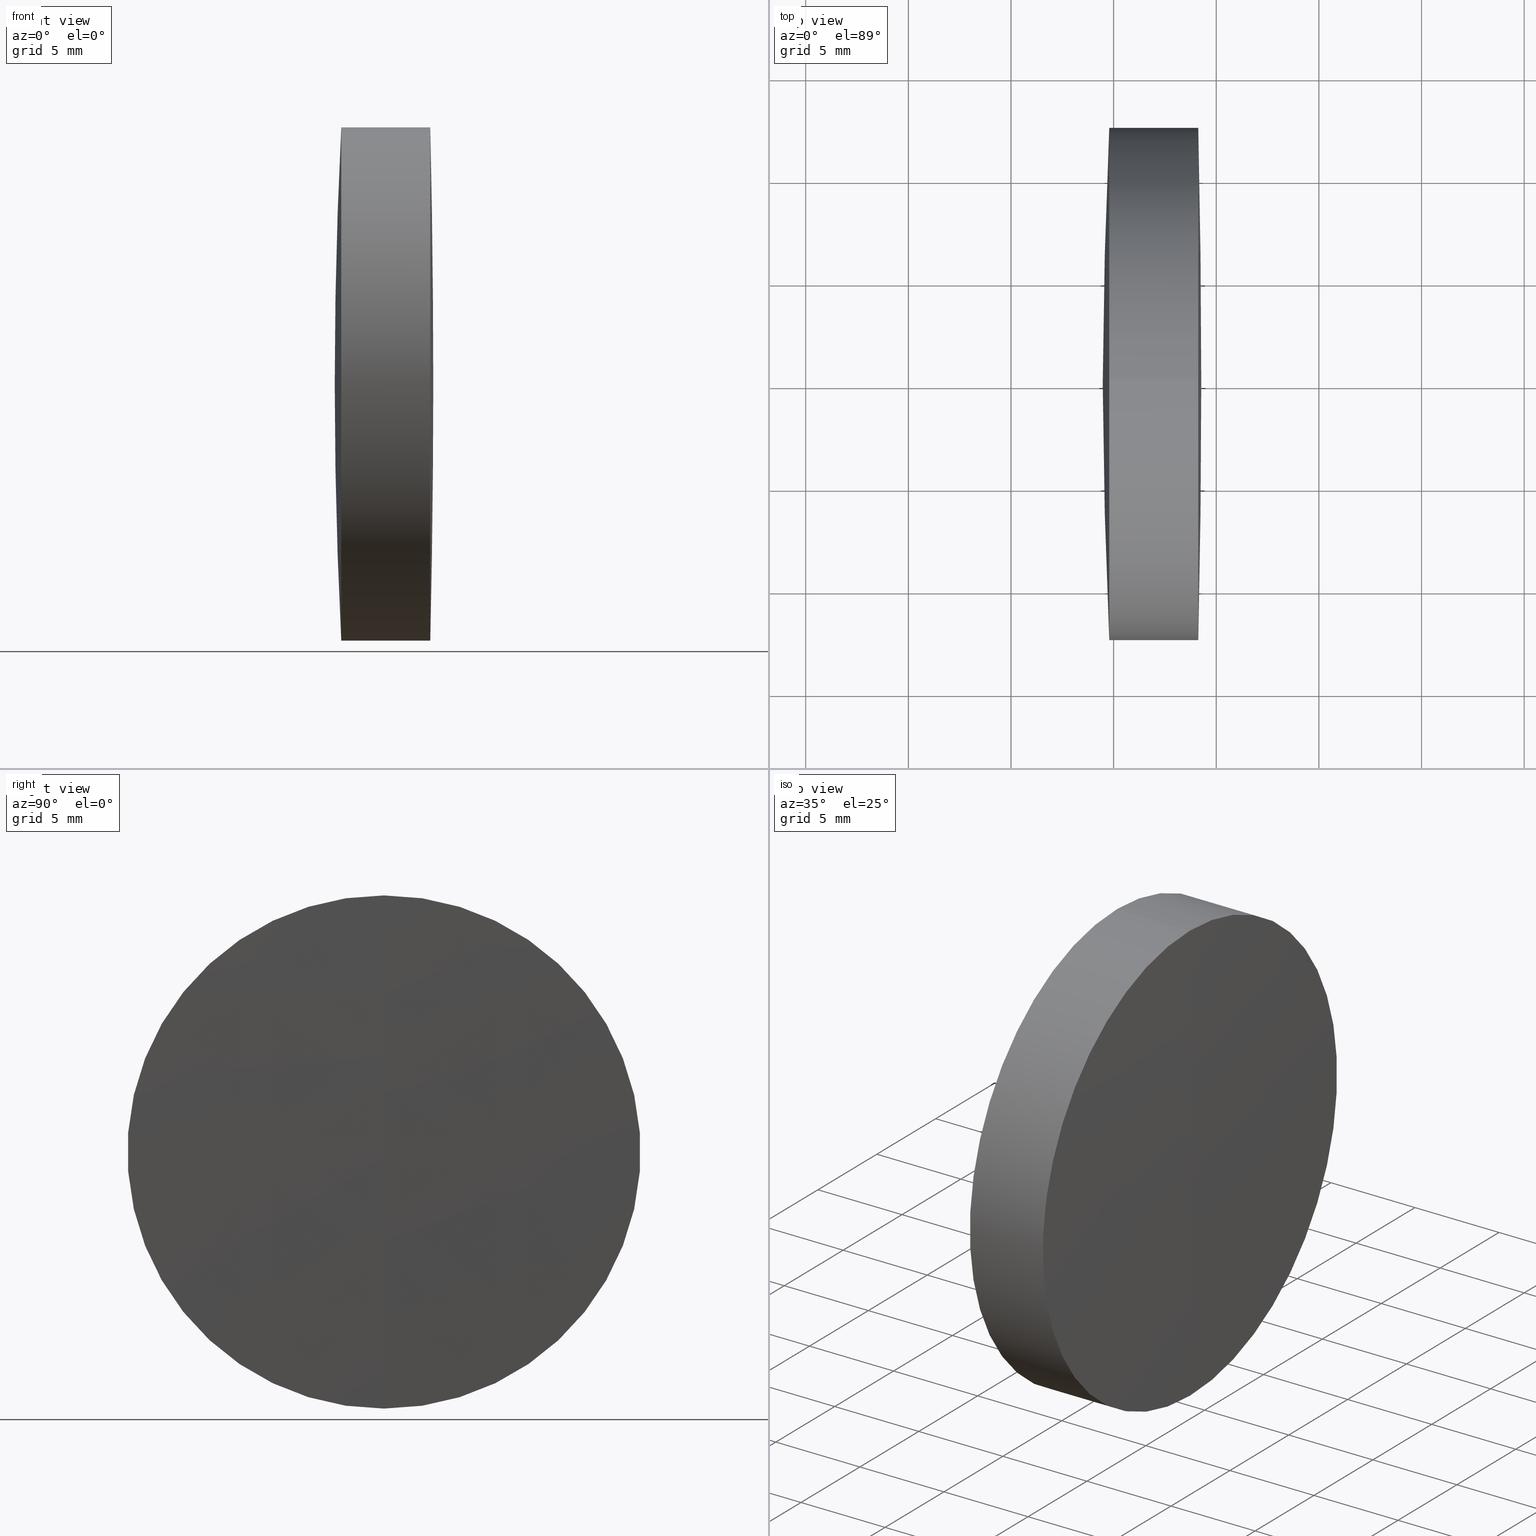
[diagram: canonical four-view strip — front | top / right | iso, engineering-drawing reading convention]
A machine part, canonical four-view strip (front | top / right | iso — engineering-drawing reading convention). The complete STEP part file that produces these views, byte-faithful:
ISO-10303-21;
HEADER;
FILE_DESCRIPTION (( 'STEP AP214' ),
    '1' );
FILE_NAME ('145048.STEP',
    '2019-05-12T07:59:32',
    ( 'user' ),
    ( '΢���й�' ),
    'SwSTEP 2.0',
    'SolidWorks 2016',
    '' );
FILE_SCHEMA (( 'AUTOMOTIVE_DESIGN' ));
ENDSEC;

DATA;
#1 = CARTESIAN_POINT ( 'NONE',  ( 0.0000000000000000000, 0.0000000000000000000, 0.0000000000000000000 ) ) ;
#2 = CARTESIAN_POINT ( 'NONE',  ( 420.1096689735746800, 0.0000000000000000000, -5.399509407595717400E-016 ) ) ;
#3 = VERTEX_POINT ( 'NONE', #94 ) ;
#4 = ADVANCED_FACE ( 'NONE', ( #183 ), #81, .T. ) ;
#5 = ORIENTED_EDGE ( 'NONE', *, *, #120, .T. ) ;
#6 = EDGE_CURVE ( 'NONE', #246, #220, #276, .T. ) ;
#7 = CARTESIAN_POINT ( 'NONE',  ( 176.7878593161265700, 1.530808498934198400E-015, -12.50000000000005700 ) ) ;
#8 = AXIS2_PLACEMENT_3D ( 'NONE', #86, #66, #31 ) ;
#9 = ORIENTED_EDGE ( 'NONE', *, *, #227, .T. ) ;
#10 = CARTESIAN_POINT ( 'NONE',  ( -9.702612178336682500, 1.530808498934191500E-015, -12.50000000000000000 ) ) ;
#11 = DIRECTION ( 'NONE',  ( -1.000000000000000000, -0.0000000000000000000, -0.0000000000000000000 ) ) ;
#12 = AXIS2_PLACEMENT_3D ( 'NONE', #168, #215, #194 ) ;
#13 = DIRECTION ( 'NONE',  ( -1.000000000000000000, -0.0000000000000000000, -0.0000000000000000000 ) ) ;
#14 = VECTOR ( 'NONE', #13, 1000.000000000000000 ) ;
#15 = ORIENTED_EDGE ( 'NONE', *, *, #243, .T. ) ;
#16 = CYLINDRICAL_SURFACE ( 'NONE', #206, 12.50000000000000000 ) ;
#17 = DIRECTION ( 'NONE',  ( 0.0000000000000000000, 1.000000000000000000, 0.0000000000000000000 ) ) ;
#18 = CARTESIAN_POINT ( 'NONE',  ( -9.702612178336682500, 0.0000000000000000000, 0.0000000000000000000 ) ) ;
#19 =( NAMED_UNIT ( * ) SI_UNIT ( $, .STERADIAN. ) SOLID_ANGLE_UNIT ( ) );
#20 = ORIENTED_EDGE ( 'NONE', *, *, #186, .T. ) ;
#21 = EDGE_CURVE ( 'NONE', #201, #3, #284, .T. ) ;
#22 = SURFACE_STYLE_FILL_AREA ( #216 ) ;
#23 = FILL_AREA_STYLE ('',( #134 ) ) ;
#24 = CYLINDRICAL_SURFACE ( 'NONE', #283, 12.50000000000005700 ) ;
#25 = EDGE_LOOP ( 'NONE', ( #171, #236, #15 ) ) ;
#26 = EDGE_CURVE ( 'NONE', #3, #102, #48, .T. ) ;
#27 = UNCERTAINTY_MEASURE_WITH_UNIT (LENGTH_MEASURE( 1.000000000000000100E-005 ), #347, 'distance_accuracy_value', 'NONE');
#28 = AXIS2_PLACEMENT_3D ( 'NONE', #204, #178, #45 ) ;
#29 = FACE_OUTER_BOUND ( 'NONE', #158, .T. ) ;
#30 = DIRECTION ( 'NONE',  ( 0.0000000000000000000, 0.0000000000000000000, 1.000000000000000000 ) ) ;
#31 = DIRECTION ( 'NONE',  ( 0.0000000000000000000, 0.0000000000000000000, 1.000000000000000000 ) ) ;
#32 = DIRECTION ( 'NONE',  ( 0.0000000000000000000, 0.0000000000000000000, 1.000000000000000000 ) ) ;
#33 = UNCERTAINTY_MEASURE_WITH_UNIT (LENGTH_MEASURE( 1.000000000000000100E-005 ), #289, 'distance_accuracy_value', 'NONE');
#34 = AXIS2_PLACEMENT_3D ( 'NONE', #213, #163, #185 ) ;
#35 = SURFACE_SIDE_STYLE ('',( #22 ) ) ;
#36 = SPHERICAL_SURFACE ( 'NONE', #331, 162.3899999999999900 ) ;
#37 = VERTEX_POINT ( 'NONE', #164 ) ;
#38 = CARTESIAN_POINT ( 'NONE',  ( 176.7878593161265700, 0.0000000000000000000, 12.50000000000005700 ) ) ;
#39 = MECHANICAL_DESIGN_GEOMETRIC_PRESENTATION_REPRESENTATION (  '', ( #130 ), #274 ) ;
#40 = EDGE_LOOP ( 'NONE', ( #296, #100, #207, #267 ) ) ;
#41 = ORIENTED_EDGE ( 'NONE', *, *, #103, .T. ) ;
#42 = EDGE_CURVE ( 'NONE', #246, #49, #60, .T. ) ;
#43 = DIRECTION ( 'NONE',  ( 0.0000000000000000000, 0.0000000000000000000, -1.000000000000000000 ) ) ;
#44 = DIRECTION ( 'NONE',  ( 0.0000000000000000000, -1.224646799147353500E-016, 1.000000000000000000 ) ) ;
#45 = DIRECTION ( 'NONE',  ( 0.0000000000000000000, 0.0000000000000000000, 1.000000000000000000 ) ) ;
#46 = ADVANCED_FACE ( 'NONE', ( #188 ), #110, .T. ) ;
#47 = DIRECTION ( 'NONE',  ( 0.0000000000000000000, 0.0000000000000000000, 1.000000000000000000 ) ) ;
#48 = CIRCLE ( 'NONE', #222, 12.49999999999999800 ) ;
#49 = VERTEX_POINT ( 'NONE', #38 ) ;
#50 = DIRECTION ( 'NONE',  ( -1.000000000000000000, -0.0000000000000000000, -0.0000000000000000000 ) ) ;
#51 = CIRCLE ( 'NONE', #136, 12.50000000000000000 ) ;
#52 = CARTESIAN_POINT ( 'NONE',  ( 14.87966897357473400, 0.0000000000000000000, 1.355252715606880500E-017 ) ) ;
#53 = APPLICATION_PROTOCOL_DEFINITION ( 'draft international standard', 'automotive_design', 1998, #251 ) ;
#54 = DIRECTION ( 'NONE',  ( 0.0000000000000000000, 1.000000000000000000, 0.0000000000000000000 ) ) ;
#55 = AXIS2_PLACEMENT_3D ( 'NONE', #112, #175, #275 ) ;
#56 = DIRECTION ( 'NONE',  ( 0.0000000000000000000, -1.224646799147353500E-016, 1.000000000000000000 ) ) ;
#57 = EDGE_CURVE ( 'NONE', #286, #201, #315, .T. ) ;
#58 = CARTESIAN_POINT ( 'NONE',  ( 176.7878593161265700, 1.530808498934191500E-015, -12.50000000000000000 ) ) ;
#59 = ORIENTED_EDGE ( 'NONE', *, *, #57, .F. ) ;
#60 = CIRCLE ( 'NONE', #327, 162.3899999999999900 ) ;
#61 = DIRECTION ( 'NONE',  ( -1.000000000000000000, -0.0000000000000000000, -0.0000000000000000000 ) ) ;
#62 = STYLED_ITEM ( 'NONE', ( #344 ), #76 ) ;
#63 = MANIFOLD_SOLID_BREP ( '��ת1', #109 ) ;
#64 = CARTESIAN_POINT ( 'NONE',  ( 14.87966897357473400, 0.0000000000000000000, 1.355252715606880500E-017 ) ) ;
#65 = PRODUCT_DEFINITION_FORMATION_WITH_SPECIFIED_SOURCE ( '�κ�', '', #182, .NOT_KNOWN. ) ;
#66 = DIRECTION ( 'NONE',  ( 0.0000000000000000000, 1.000000000000000000, 0.0000000000000000000 ) ) ;
#67 = CYLINDRICAL_SURFACE ( 'NONE', #80, 12.50000000000005700 ) ;
#68 = DIRECTION ( 'NONE',  ( -0.0000000000000000000, 1.000000000000000000, 1.224646799147353200E-016 ) ) ;
#69 = DIRECTION ( 'NONE',  ( -1.000000000000000000, -0.0000000000000000000, -0.0000000000000000000 ) ) ;
#70 = ORIENTED_EDGE ( 'NONE', *, *, #234, .T. ) ;
#71 = SURFACE_SIDE_STYLE ('',( #82 ) ) ;
#72 = PRESENTATION_LAYER_ASSIGNMENT (  '', '', ( #295 ) ) ;
#73 = CIRCLE ( 'NONE', #167, 535.8200000000000500 ) ;
#74 = SURFACE_STYLE_USAGE ( .BOTH. , #169 ) ;
#75 =( GEOMETRIC_REPRESENTATION_CONTEXT ( 3 ) GLOBAL_UNCERTAINTY_ASSIGNED_CONTEXT ( ( #33 ) ) GLOBAL_UNIT_ASSIGNED_CONTEXT ( ( #289, #259, #93 ) ) REPRESENTATION_CONTEXT ( 'NONE', 'WORKASPACE' ) );
#76 = MANIFOLD_SOLID_BREP ( '��ת3', #132 ) ;
#77 =( GEOMETRIC_REPRESENTATION_CONTEXT ( 3 ) GLOBAL_UNCERTAINTY_ASSIGNED_CONTEXT ( ( #316 ) ) GLOBAL_UNIT_ASSIGNED_CONTEXT ( ( #123, #115, #98 ) ) REPRESENTATION_CONTEXT ( 'NONE', 'WORKASPACE' ) );
#78 = ORIENTED_EDGE ( 'NONE', *, *, #103, .F. ) ;
#79 = CIRCLE ( 'NONE', #180, 12.49999999999999800 ) ;
#80 = AXIS2_PLACEMENT_3D ( 'NONE', #218, #209, #128 ) ;
#81 = SPHERICAL_SURFACE ( 'NONE', #172, 535.8200000000000500 ) ;
#82 = SURFACE_STYLE_FILL_AREA ( #95 ) ;
#83 = FACE_OUTER_BOUND ( 'NONE', #177, .T. ) ;
#84 = CARTESIAN_POINT ( 'NONE',  ( 174.7879218739749900, 1.530808498934200400E-015, -12.50000000000007300 ) ) ;
#85 = ADVANCED_FACE ( 'NONE', ( #240 ), #24, .T. ) ;
#86 = CARTESIAN_POINT ( 'NONE',  ( 14.87966897357473400, 0.0000000000000000000, 1.355252715606880500E-017 ) ) ;
#87 = VECTOR ( 'NONE', #11, 1000.000000000000000 ) ;
#88 = CARTESIAN_POINT ( 'NONE',  ( -0.5519199926577972300, 1.530808498934198400E-015, -12.50000000000005700 ) ) ;
#89 = PRODUCT_DEFINITION_CONTEXT ( 'detailed design', #339, 'design' ) ;
#90 = CARTESIAN_POINT ( 'NONE',  ( 174.7879218739749900, 0.0000000000000000000, 0.0000000000000000000 ) ) ;
#91 = DIRECTION ( 'NONE',  ( -1.000000000000000000, -0.0000000000000000000, -0.0000000000000000000 ) ) ;
#92 = ORIENTED_EDGE ( 'NONE', *, *, #227, .F. ) ;
#93 =( NAMED_UNIT ( * ) SI_UNIT ( $, .STERADIAN. ) SOLID_ANGLE_UNIT ( ) );
#94 = CARTESIAN_POINT ( 'NONE',  ( 174.7879218739749900, 0.0000000000000000000, 12.50000000000007300 ) ) ;
#95 = FILL_AREA_STYLE ('',( #245 ) ) ;
#96 = DIRECTION ( 'NONE',  ( 0.0000000000000000000, 0.0000000000000000000, 1.000000000000000000 ) ) ;
#97 = FACE_OUTER_BOUND ( 'NONE', #237, .T. ) ;
#98 =( NAMED_UNIT ( * ) SI_UNIT ( $, .STERADIAN. ) SOLID_ANGLE_UNIT ( ) );
#99 = MECHANICAL_DESIGN_GEOMETRIC_PRESENTATION_REPRESENTATION (  '', ( #62 ), #77 ) ;
#100 = ORIENTED_EDGE ( 'NONE', *, *, #304, .T. ) ;
#101 = DIRECTION ( 'NONE',  ( 0.0000000000000000000, 0.0000000000000000000, -1.000000000000000000 ) ) ;
#102 = VERTEX_POINT ( 'NONE', #84 ) ;
#103 = EDGE_CURVE ( 'NONE', #281, #220, #300, .T. ) ;
#104 = CARTESIAN_POINT ( 'NONE',  ( 174.4696689735747800, 0.0000000000000000000, 1.450116104636821900E-014 ) ) ;
#105 = DIRECTION ( 'NONE',  ( 0.0000000000000000000, -1.000000000000000000, 0.0000000000000000000 ) ) ;
#106 = VECTOR ( 'NONE', #50, 1000.000000000000000 ) ;
#107 = ORIENTED_EDGE ( 'NONE', *, *, #6, .F. ) ;
#108 = MECHANICAL_DESIGN_GEOMETRIC_PRESENTATION_REPRESENTATION (  '', ( #295 ), #343 ) ;
#109 = CLOSED_SHELL ( 'NONE', ( #223, #200, #190, #244, #332, #137 ) ) ;
#110 = SPHERICAL_SURFACE ( 'NONE', #214, 535.8200000000000500 ) ;
#111 = ADVANCED_FACE ( 'NONE', ( #231 ), #170, .F. ) ;
#112 = CARTESIAN_POINT ( 'NONE',  ( 14.87966897357473400, 0.0000000000000000000, 1.355252715606880500E-017 ) ) ;
#113 = ORIENTED_EDGE ( 'NONE', *, *, #278, .F. ) ;
#114 = ORIENTED_EDGE ( 'NONE', *, *, #142, .F. ) ;
#115 =( NAMED_UNIT ( * ) PLANE_ANGLE_UNIT ( ) SI_UNIT ( $, .RADIAN. ) );
#116 = EDGE_CURVE ( 'NONE', #286, #338, #176, .T. ) ;
#117 = DIRECTION ( 'NONE',  ( -1.000000000000000000, -0.0000000000000000000, -0.0000000000000000000 ) ) ;
#118 = AXIS2_PLACEMENT_3D ( 'NONE', #191, #230, #197 ) ;
#119 = CARTESIAN_POINT ( 'NONE',  ( 420.1096689735746800, 0.0000000000000000000, -5.399509407595717400E-016 ) ) ;
#120 = EDGE_CURVE ( 'NONE', #338, #102, #291, .T. ) ;
#121 = SPHERICAL_SURFACE ( 'NONE', #314, 245.6399999999999300 ) ;
#122 = ORIENTED_EDGE ( 'NONE', *, *, #243, .F. ) ;
#123 =( LENGTH_UNIT ( ) NAMED_UNIT ( * ) SI_UNIT ( .MILLI., .METRE. ) );
#124 = FACE_OUTER_BOUND ( 'NONE', #25, .T. ) ;
#125 = CARTESIAN_POINT ( 'NONE',  ( -0.5519199926577972300, 0.0000000000000000000, 12.50000000000005700 ) ) ;
#126 = DIRECTION ( 'NONE',  ( -1.000000000000000000, -0.0000000000000000000, -0.0000000000000000000 ) ) ;
#127 = SURFACE_STYLE_FILL_AREA ( #23 ) ;
#128 = DIRECTION ( 'NONE',  ( 0.0000000000000000000, 0.0000000000000000000, 1.000000000000000000 ) ) ;
#129 = DIRECTION ( 'NONE',  ( 0.0000000000000000000, 1.000000000000000000, 0.0000000000000000000 ) ) ;
#130 = STYLED_ITEM ( 'NONE', ( #310 ), #179 ) ;
#131 = VERTEX_POINT ( 'NONE', #203 ) ;
#132 = CLOSED_SHELL ( 'NONE', ( #46, #336, #301, #111, #85, #4 ) ) ;
#133 = CARTESIAN_POINT ( 'NONE',  ( 177.2696689735747100, 0.0000000000000000000, 9.957072212833002500E-015 ) ) ;
#134 = FILL_AREA_STYLE_COLOUR ( '', #156 ) ;
#135 = FACE_OUTER_BOUND ( 'NONE', #317, .T. ) ;
#136 = AXIS2_PLACEMENT_3D ( 'NONE', #253, #61, #329 ) ;
#137 = ADVANCED_FACE ( 'NONE', ( #97 ), #36, .T. ) ;
#138 = EDGE_LOOP ( 'NONE', ( #107, #258, #297 ) ) ;
#139 = ORIENTED_EDGE ( 'NONE', *, *, #298, .F. ) ;
#140 = DIRECTION ( 'NONE',  ( 0.0000000000000000000, 0.0000000000000000000, 1.000000000000000000 ) ) ;
#141 = FACE_OUTER_BOUND ( 'NONE', #184, .T. ) ;
#142 = EDGE_CURVE ( 'NONE', #131, #49, #280, .T. ) ;
#143 = UNCERTAINTY_MEASURE_WITH_UNIT (LENGTH_MEASURE( 1.000000000000000100E-005 ), #195, 'distance_accuracy_value', 'NONE');
#144 = EDGE_CURVE ( 'NONE', #49, #220, #219, .T. ) ;
#145 = PRODUCT_DEFINITION ( 'δ֪', '', #65, #89 ) ;
#146 = ORIENTED_EDGE ( 'NONE', *, *, #142, .T. ) ;
#147 = DIRECTION ( 'NONE',  ( 0.0000000000000000000, 0.0000000000000000000, 1.000000000000000000 ) ) ;
#148 = DIRECTION ( 'NONE',  ( -1.000000000000000000, -0.0000000000000000000, -0.0000000000000000000 ) ) ;
#149 = ORIENTED_EDGE ( 'NONE', *, *, #249, .F. ) ;
#150 = AXIS2_PLACEMENT_3D ( 'NONE', #341, #250, #147 ) ;
#151 = COLOUR_RGB ( '',1.000000000000000000, 1.000000000000000000, 1.000000000000000000 ) ;
#152 = SURFACE_STYLE_USAGE ( .BOTH. , #35 ) ;
#153 = CIRCLE ( 'NONE', #150, 12.50000000000000000 ) ;
#154 = CARTESIAN_POINT ( 'NONE',  ( -356.5503310264253400, 0.0000000000000000000, 0.0000000000000000000 ) ) ;
#155 = ORIENTED_EDGE ( 'NONE', *, *, #186, .F. ) ;
#156 = COLOUR_RGB ( '',1.000000000000000000, 1.000000000000000000, 1.000000000000000000 ) ;
#157 = DIRECTION ( 'NONE',  ( -1.000000000000000000, -0.0000000000000000000, -0.0000000000000000000 ) ) ;
#158 = EDGE_LOOP ( 'NONE', ( #165, #319, #174 ) ) ;
#159 = CIRCLE ( 'NONE', #263, 535.8200000000000500 ) ;
#160 = CARTESIAN_POINT ( 'NONE',  ( -356.5503310264253400, 0.0000000000000000000, 0.0000000000000000000 ) ) ;
#161 = ORIENTED_EDGE ( 'NONE', *, *, #304, .F. ) ;
#162 = PRESENTATION_LAYER_ASSIGNMENT (  '', '', ( #130 ) ) ;
#163 = DIRECTION ( 'NONE',  ( 0.0000000000000000000, -1.000000000000000000, 0.0000000000000000000 ) ) ;
#164 = CARTESIAN_POINT ( 'NONE',  ( 179.2696689735747100, 0.0000000000000000000, 3.280951239595674800E-014 ) ) ;
#165 = ORIENTED_EDGE ( 'NONE', *, *, #26, .T. ) ;
#166 = ORIENTED_EDGE ( 'NONE', *, *, #21, .F. ) ;
#167 = AXIS2_PLACEMENT_3D ( 'NONE', #160, #285, #43 ) ;
#168 = CARTESIAN_POINT ( 'NONE',  ( 14.87966897357473400, 0.0000000000000000000, 1.355252715606880500E-017 ) ) ;
#169 = SURFACE_SIDE_STYLE ('',( #127 ) ) ;
#170 = SPHERICAL_SURFACE ( 'NONE', #8, 162.3899999999999900 ) ;
#171 = ORIENTED_EDGE ( 'NONE', *, *, #42, .F. ) ;
#172 = AXIS2_PLACEMENT_3D ( 'NONE', #154, #129, #261 ) ;
#173 = EDGE_LOOP ( 'NONE', ( #78, #70, #146, #122 ) ) ;
#174 = ORIENTED_EDGE ( 'NONE', *, *, #308, .F. ) ;
#175 = DIRECTION ( 'NONE',  ( 0.0000000000000000000, 1.000000000000000000, 0.0000000000000000000 ) ) ;
#176 = CIRCLE ( 'NONE', #118, 162.3899999999999900 ) ;
#177 = EDGE_LOOP ( 'NONE', ( #9, #41, #337, #114 ) ) ;
#178 = DIRECTION ( 'NONE',  ( -1.000000000000000000, -0.0000000000000000000, -0.0000000000000000000 ) ) ;
#179 = ADVANCED_BREP_SHAPE_REPRESENTATION ( '145048', ( #63, #76, #192 ), #75 ) ;
#180 = AXIS2_PLACEMENT_3D ( 'NONE', #224, #157, #345 ) ;
#181 = CARTESIAN_POINT ( 'NONE',  ( 179.1238445691506900, 0.0000000000000000000, 0.0000000000000000000 ) ) ;
#182 = PRODUCT ( '145048', '145048', '', ( #262 ) ) ;
#183 = FACE_OUTER_BOUND ( 'NONE', #305, .T. ) ;
#184 = EDGE_LOOP ( 'NONE', ( #59, #212, #113 ) ) ;
#185 = DIRECTION ( 'NONE',  ( 0.0000000000000000000, 0.0000000000000000000, -1.000000000000000000 ) ) ;
#186 = EDGE_CURVE ( 'NONE', #37, #281, #159, .T. ) ;
#187 = AXIS2_PLACEMENT_3D ( 'NONE', #18, #69, #239 ) ;
#188 = FACE_OUTER_BOUND ( 'NONE', #225, .T. ) ;
#189 = DIRECTION ( 'NONE',  ( -0.0000000000000000000, 1.000000000000000000, 1.224646799147353200E-016 ) ) ;
#190 = ADVANCED_FACE ( 'NONE', ( #29 ), #121, .T. ) ;
#191 = CARTESIAN_POINT ( 'NONE',  ( 14.87966897357473400, 0.0000000000000000000, 1.355252715606880500E-017 ) ) ;
#192 = AXIS2_PLACEMENT_3D ( 'NONE', #1, #47, #309 ) ;
#193 = DIRECTION ( 'NONE',  ( 0.0000000000000000000, 1.000000000000000000, 0.0000000000000000000 ) ) ;
#194 = DIRECTION ( 'NONE',  ( 0.0000000000000000000, 0.0000000000000000000, -1.000000000000000000 ) ) ;
#195 =( LENGTH_UNIT ( ) NAMED_UNIT ( * ) SI_UNIT ( .MILLI., .METRE. ) );
#196 = ORIENTED_EDGE ( 'NONE', *, *, #308, .T. ) ;
#197 = DIRECTION ( 'NONE',  ( 0.0000000000000000000, -1.224646799147353200E-016, 1.000000000000000000 ) ) ;
#198 = AXIS2_PLACEMENT_3D ( 'NONE', #235, #68, #199 ) ;
#199 = DIRECTION ( 'NONE',  ( 0.0000000000000000000, -1.224646799147353200E-016, 1.000000000000000000 ) ) ;
#200 = ADVANCED_FACE ( 'NONE', ( #211 ), #16, .T. ) ;
#201 = VERTEX_POINT ( 'NONE', #330 ) ;
#202 = ORIENTED_EDGE ( 'NONE', *, *, #272, .T. ) ;
#203 = CARTESIAN_POINT ( 'NONE',  ( 179.1238445691506900, 0.0000000000000000000, 12.50000000000000900 ) ) ;
#204 = CARTESIAN_POINT ( 'NONE',  ( 179.1238445691506900, 0.0000000000000000000, 0.0000000000000000000 ) ) ;
#205 = FACE_OUTER_BOUND ( 'NONE', #40, .T. ) ;
#206 = AXIS2_PLACEMENT_3D ( 'NONE', #221, #307, #325 ) ;
#207 = ORIENTED_EDGE ( 'NONE', *, *, #21, .T. ) ;
#208 = PRESENTATION_STYLE_ASSIGNMENT (( #152 ) ) ;
#209 = DIRECTION ( 'NONE',  ( -1.000000000000000000, -0.0000000000000000000, -0.0000000000000000000 ) ) ;
#210 = AXIS2_PLACEMENT_3D ( 'NONE', #302, #299, #293 ) ;
#211 = FACE_OUTER_BOUND ( 'NONE', #312, .T. ) ;
#212 = ORIENTED_EDGE ( 'NONE', *, *, #116, .T. ) ;
#213 = CARTESIAN_POINT ( 'NONE',  ( 420.1096689735746800, 0.0000000000000000000, -5.399509407595717400E-016 ) ) ;
#214 = AXIS2_PLACEMENT_3D ( 'NONE', #320, #290, #30 ) ;
#215 = DIRECTION ( 'NONE',  ( 0.0000000000000000000, -1.000000000000000000, 0.0000000000000000000 ) ) ;
#216 = FILL_AREA_STYLE ('',( #324 ) ) ;
#217 = DIRECTION ( 'NONE',  ( 0.0000000000000000000, 1.000000000000000000, 0.0000000000000000000 ) ) ;
#218 = CARTESIAN_POINT ( 'NONE',  ( -0.5519199926577972300, 0.0000000000000000000, 0.0000000000000000000 ) ) ;
#219 = CIRCLE ( 'NONE', #311, 12.50000000000010300 ) ;
#220 = VERTEX_POINT ( 'NONE', #7 ) ;
#221 = CARTESIAN_POINT ( 'NONE',  ( -9.702612178336682500, 0.0000000000000000000, 0.0000000000000000000 ) ) ;
#222 = AXIS2_PLACEMENT_3D ( 'NONE', #90, #91, #313 ) ;
#223 = ADVANCED_FACE ( 'NONE', ( #141 ), #226, .T. ) ;
#224 = CARTESIAN_POINT ( 'NONE',  ( 174.7879218739749900, 0.0000000000000000000, 0.0000000000000000000 ) ) ;
#225 = EDGE_LOOP ( 'NONE', ( #149, #20, #92 ) ) ;
#226 = SPHERICAL_SURFACE ( 'NONE', #254, 162.3899999999999900 ) ;
#227 = EDGE_CURVE ( 'NONE', #131, #281, #279, .T. ) ;
#228 = CARTESIAN_POINT ( 'NONE',  ( 176.7878593161265700, 0.0000000000000000000, 0.0000000000000000000 ) ) ;
#229 = PRESENTATION_LAYER_ASSIGNMENT (  '', '', ( #62 ) ) ;
#230 = DIRECTION ( 'NONE',  ( -0.0000000000000000000, 1.000000000000000000, 1.224646799147353200E-016 ) ) ;
#231 = FACE_OUTER_BOUND ( 'NONE', #138, .T. ) ;
#232 =( NAMED_UNIT ( * ) PLANE_ANGLE_UNIT ( ) SI_UNIT ( $, .RADIAN. ) );
#233 = ORIENTED_EDGE ( 'NONE', *, *, #26, .F. ) ;
#234 = EDGE_CURVE ( 'NONE', #281, #131, #255, .T. ) ;
#235 = CARTESIAN_POINT ( 'NONE',  ( 14.87966897357473400, 0.0000000000000000000, 1.355252715606880500E-017 ) ) ;
#236 = ORIENTED_EDGE ( 'NONE', *, *, #6, .T. ) ;
#237 = EDGE_LOOP ( 'NONE', ( #265, #306, #161 ) ) ;
#238 = CARTESIAN_POINT ( 'NONE',  ( 179.1238445691506900, 1.530808498934195700E-015, -12.50000000000000900 ) ) ;
#239 = DIRECTION ( 'NONE',  ( 0.0000000000000000000, 0.0000000000000000000, 1.000000000000000000 ) ) ;
#240 = FACE_OUTER_BOUND ( 'NONE', #173, .T. ) ;
#241 = DIRECTION ( 'NONE',  ( 0.0000000000000000000, 0.0000000000000000000, 1.000000000000000000 ) ) ;
#242 = CARTESIAN_POINT ( 'NONE',  ( 14.87966897357473400, 0.0000000000000000000, 1.355252715606880500E-017 ) ) ;
#243 = EDGE_CURVE ( 'NONE', #220, #49, #340, .T. ) ;
#244 = ADVANCED_FACE ( 'NONE', ( #135 ), #288, .T. ) ;
#245 = FILL_AREA_STYLE_COLOUR ( '', #151 ) ;
#246 = VERTEX_POINT ( 'NONE', #303 ) ;
#247 = ORIENTED_EDGE ( 'NONE', *, *, #249, .T. ) ;
#248 = PRODUCT_RELATED_PRODUCT_CATEGORY ( 'part', '', ( #182 ) ) ;
#249 = EDGE_CURVE ( 'NONE', #37, #131, #73, .T. ) ;
#250 = DIRECTION ( 'NONE',  ( -1.000000000000000000, -0.0000000000000000000, -0.0000000000000000000 ) ) ;
#251 = APPLICATION_CONTEXT ( 'automotive_design' ) ;
#252 = PRODUCT_DEFINITION_SHAPE ( 'NONE', 'NONE',  #145 ) ;
#253 = CARTESIAN_POINT ( 'NONE',  ( 176.7878593161265700, 0.0000000000000000000, 0.0000000000000000000 ) ) ;
#254 = AXIS2_PLACEMENT_3D ( 'NONE', #64, #217, #32 ) ;
#255 = CIRCLE ( 'NONE', #28, 12.50000000000000900 ) ;
#256 = CIRCLE ( 'NONE', #34, 245.6399999999999300 ) ;
#257 = DIRECTION ( 'NONE',  ( -0.0000000000000000000, 1.000000000000000000, 1.224646799147353200E-016 ) ) ;
#258 = ORIENTED_EDGE ( 'NONE', *, *, #42, .T. ) ;
#259 =( NAMED_UNIT ( * ) PLANE_ANGLE_UNIT ( ) SI_UNIT ( $, .RADIAN. ) );
#260 = CYLINDRICAL_SURFACE ( 'NONE', #187, 12.50000000000000000 ) ;
#261 = DIRECTION ( 'NONE',  ( 0.0000000000000000000, 0.0000000000000000000, 1.000000000000000000 ) ) ;
#262 = PRODUCT_CONTEXT ( 'NONE', #251, 'mechanical' ) ;
#263 = AXIS2_PLACEMENT_3D ( 'NONE', #333, #189, #56 ) ;
#264 = CIRCLE ( 'NONE', #269, 245.6399999999999300 ) ;
#265 = ORIENTED_EDGE ( 'NONE', *, *, #116, .F. ) ;
#266 =( NAMED_UNIT ( * ) SI_UNIT ( $, .STERADIAN. ) SOLID_ANGLE_UNIT ( ) );
#267 = ORIENTED_EDGE ( 'NONE', *, *, #272, .F. ) ;
#268 = DIRECTION ( 'NONE',  ( -1.000000000000000000, -0.0000000000000000000, -0.0000000000000000000 ) ) ;
#269 = AXIS2_PLACEMENT_3D ( 'NONE', #2, #257, #44 ) ;
#270 = DIRECTION ( 'NONE',  ( 0.0000000000000000000, 0.0000000000000000000, 1.000000000000000000 ) ) ;
#271 =( NAMED_UNIT ( * ) PLANE_ANGLE_UNIT ( ) SI_UNIT ( $, .RADIAN. ) );
#272 = EDGE_CURVE ( 'NONE', #102, #3, #79, .T. ) ;
#273 = VECTOR ( 'NONE', #148, 1000.000000000000000 ) ;
#274 =( GEOMETRIC_REPRESENTATION_CONTEXT ( 3 ) GLOBAL_UNCERTAINTY_ASSIGNED_CONTEXT ( ( #27 ) ) GLOBAL_UNIT_ASSIGNED_CONTEXT ( ( #347, #232, #19 ) ) REPRESENTATION_CONTEXT ( 'NONE', 'WORKASPACE' ) );
#275 = DIRECTION ( 'NONE',  ( 0.0000000000000000000, 0.0000000000000000000, 1.000000000000000000 ) ) ;
#276 = CIRCLE ( 'NONE', #198, 162.3899999999999900 ) ;
#277 = ORIENTED_EDGE ( 'NONE', *, *, #234, .F. ) ;
#278 = EDGE_CURVE ( 'NONE', #201, #338, #51, .T. ) ;
#279 = CIRCLE ( 'NONE', #322, 12.50000000000000900 ) ;
#280 = LINE ( 'NONE', #125, #87 ) ;
#281 = VERTEX_POINT ( 'NONE', #238 ) ;
#282 = DIRECTION ( 'NONE',  ( 0.0000000000000000000, 0.0000000000000000000, 1.000000000000000000 ) ) ;
#283 = AXIS2_PLACEMENT_3D ( 'NONE', #323, #117, #241 ) ;
#284 = LINE ( 'NONE', #342, #273 ) ;
#285 = DIRECTION ( 'NONE',  ( 0.0000000000000000000, -1.000000000000000000, 0.0000000000000000000 ) ) ;
#286 = VERTEX_POINT ( 'NONE', #133 ) ;
#287 = SPHERICAL_SURFACE ( 'NONE', #55, 162.3899999999999900 ) ;
#288 = SPHERICAL_SURFACE ( 'NONE', #334, 245.6399999999999300 ) ;
#289 =( LENGTH_UNIT ( ) NAMED_UNIT ( * ) SI_UNIT ( .MILLI., .METRE. ) );
#290 = DIRECTION ( 'NONE',  ( 0.0000000000000000000, 1.000000000000000000, 0.0000000000000000000 ) ) ;
#291 = LINE ( 'NONE', #10, #14 ) ;
#292 = ORIENTED_EDGE ( 'NONE', *, *, #278, .T. ) ;
#293 = DIRECTION ( 'NONE',  ( 0.0000000000000000000, 0.0000000000000000000, 1.000000000000000000 ) ) ;
#294 = SURFACE_STYLE_USAGE ( .BOTH. , #71 ) ;
#295 = STYLED_ITEM ( 'NONE', ( #208 ), #63 ) ;
#296 = ORIENTED_EDGE ( 'NONE', *, *, #120, .F. ) ;
#297 = ORIENTED_EDGE ( 'NONE', *, *, #144, .T. ) ;
#298 = EDGE_CURVE ( 'NONE', #102, #328, #264, .T. ) ;
#299 = DIRECTION ( 'NONE',  ( -1.000000000000000000, -0.0000000000000000000, -0.0000000000000000000 ) ) ;
#300 = LINE ( 'NONE', #88, #106 ) ;
#301 = ADVANCED_FACE ( 'NONE', ( #124 ), #287, .F. ) ;
#302 = CARTESIAN_POINT ( 'NONE',  ( 176.7878593161265700, 0.0000000000000000000, 0.0000000000000000000 ) ) ;
#303 = CARTESIAN_POINT ( 'NONE',  ( 177.2696689735747100, 0.0000000000000000000, 9.957072212833002500E-015 ) ) ;
#304 = EDGE_CURVE ( 'NONE', #338, #201, #153, .T. ) ;
#305 = EDGE_LOOP ( 'NONE', ( #155, #247, #277 ) ) ;
#306 = ORIENTED_EDGE ( 'NONE', *, *, #57, .T. ) ;
#307 = DIRECTION ( 'NONE',  ( -1.000000000000000000, -0.0000000000000000000, -0.0000000000000000000 ) ) ;
#308 = EDGE_CURVE ( 'NONE', #3, #328, #256, .T. ) ;
#309 = DIRECTION ( 'NONE',  ( 1.000000000000000000, 0.0000000000000000000, 0.0000000000000000000 ) ) ;
#310 = PRESENTATION_STYLE_ASSIGNMENT (( #74 ) ) ;
#311 = AXIS2_PLACEMENT_3D ( 'NONE', #228, #268, #321 ) ;
#312 = EDGE_LOOP ( 'NONE', ( #292, #5, #233, #166 ) ) ;
#313 = DIRECTION ( 'NONE',  ( 0.0000000000000000000, 0.0000000000000000000, 1.000000000000000000 ) ) ;
#314 = AXIS2_PLACEMENT_3D ( 'NONE', #318, #193, #96 ) ;
#315 = CIRCLE ( 'NONE', #12, 162.3899999999999900 ) ;
#316 = UNCERTAINTY_MEASURE_WITH_UNIT (LENGTH_MEASURE( 1.000000000000000100E-005 ), #123, 'distance_accuracy_value', 'NONE');
#317 = EDGE_LOOP ( 'NONE', ( #139, #202, #196 ) ) ;
#318 = CARTESIAN_POINT ( 'NONE',  ( 420.1096689735746800, 0.0000000000000000000, -5.399509407595717400E-016 ) ) ;
#319 = ORIENTED_EDGE ( 'NONE', *, *, #298, .T. ) ;
#320 = CARTESIAN_POINT ( 'NONE',  ( -356.5503310264253400, 0.0000000000000000000, 0.0000000000000000000 ) ) ;
#321 = DIRECTION ( 'NONE',  ( 0.0000000000000000000, 0.0000000000000000000, 1.000000000000000000 ) ) ;
#322 = AXIS2_PLACEMENT_3D ( 'NONE', #181, #126, #140 ) ;
#323 = CARTESIAN_POINT ( 'NONE',  ( -0.5519199926577972300, 0.0000000000000000000, 0.0000000000000000000 ) ) ;
#324 = FILL_AREA_STYLE_COLOUR ( '', #326 ) ;
#325 = DIRECTION ( 'NONE',  ( 0.0000000000000000000, 0.0000000000000000000, 1.000000000000000000 ) ) ;
#326 = COLOUR_RGB ( '',1.000000000000000000, 1.000000000000000000, 1.000000000000000000 ) ;
#327 = AXIS2_PLACEMENT_3D ( 'NONE', #242, #105, #101 ) ;
#328 = VERTEX_POINT ( 'NONE', #104 ) ;
#329 = DIRECTION ( 'NONE',  ( 0.0000000000000000000, 0.0000000000000000000, 1.000000000000000000 ) ) ;
#330 = CARTESIAN_POINT ( 'NONE',  ( 176.7878593161265700, 0.0000000000000000000, 12.50000000000000000 ) ) ;
#331 = AXIS2_PLACEMENT_3D ( 'NONE', #52, #17, #282 ) ;
#332 = ADVANCED_FACE ( 'NONE', ( #205 ), #260, .T. ) ;
#333 = CARTESIAN_POINT ( 'NONE',  ( -356.5503310264253400, 0.0000000000000000000, 0.0000000000000000000 ) ) ;
#334 = AXIS2_PLACEMENT_3D ( 'NONE', #119, #54, #270 ) ;
#335 = APPLICATION_PROTOCOL_DEFINITION ( 'draft international standard', 'automotive_design', 1998, #339 ) ;
#336 = ADVANCED_FACE ( 'NONE', ( #83 ), #67, .T. ) ;
#337 = ORIENTED_EDGE ( 'NONE', *, *, #144, .F. ) ;
#338 = VERTEX_POINT ( 'NONE', #58 ) ;
#339 = APPLICATION_CONTEXT ( 'automotive_design' ) ;
#340 = CIRCLE ( 'NONE', #210, 12.50000000000010300 ) ;
#341 = CARTESIAN_POINT ( 'NONE',  ( 176.7878593161265700, 0.0000000000000000000, 0.0000000000000000000 ) ) ;
#342 = CARTESIAN_POINT ( 'NONE',  ( -9.702612178336682500, 0.0000000000000000000, 12.50000000000000000 ) ) ;
#343 =( GEOMETRIC_REPRESENTATION_CONTEXT ( 3 ) GLOBAL_UNCERTAINTY_ASSIGNED_CONTEXT ( ( #143 ) ) GLOBAL_UNIT_ASSIGNED_CONTEXT ( ( #195, #271, #266 ) ) REPRESENTATION_CONTEXT ( 'NONE', 'WORKASPACE' ) );
#344 = PRESENTATION_STYLE_ASSIGNMENT (( #294 ) ) ;
#345 = DIRECTION ( 'NONE',  ( 0.0000000000000000000, 0.0000000000000000000, 1.000000000000000000 ) ) ;
#346 = SHAPE_DEFINITION_REPRESENTATION ( #252, #179 ) ;
#347 =( LENGTH_UNIT ( ) NAMED_UNIT ( * ) SI_UNIT ( .MILLI., .METRE. ) );
ENDSEC;
END-ISO-10303-21;
